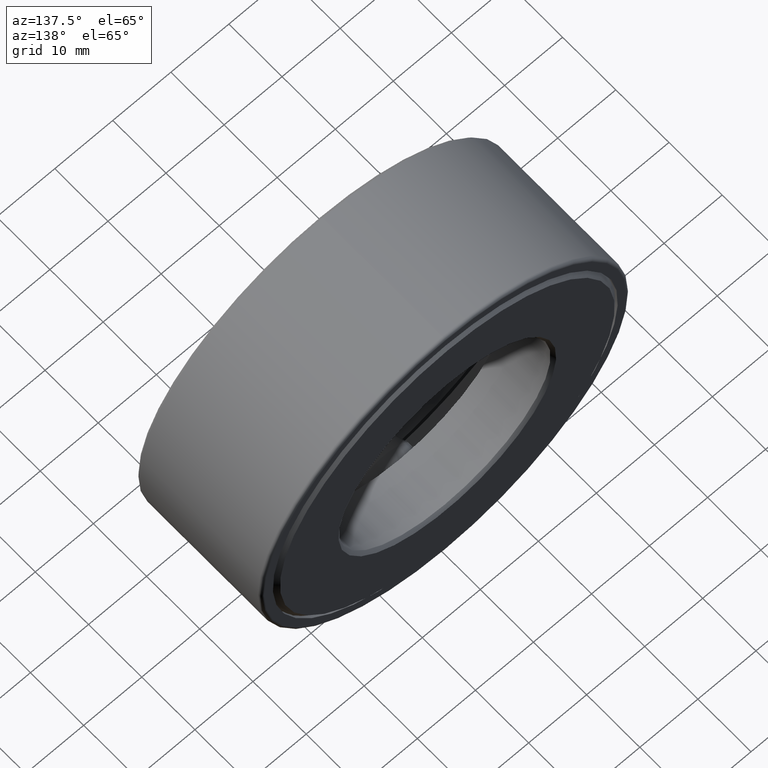
[diagram: clean part render]
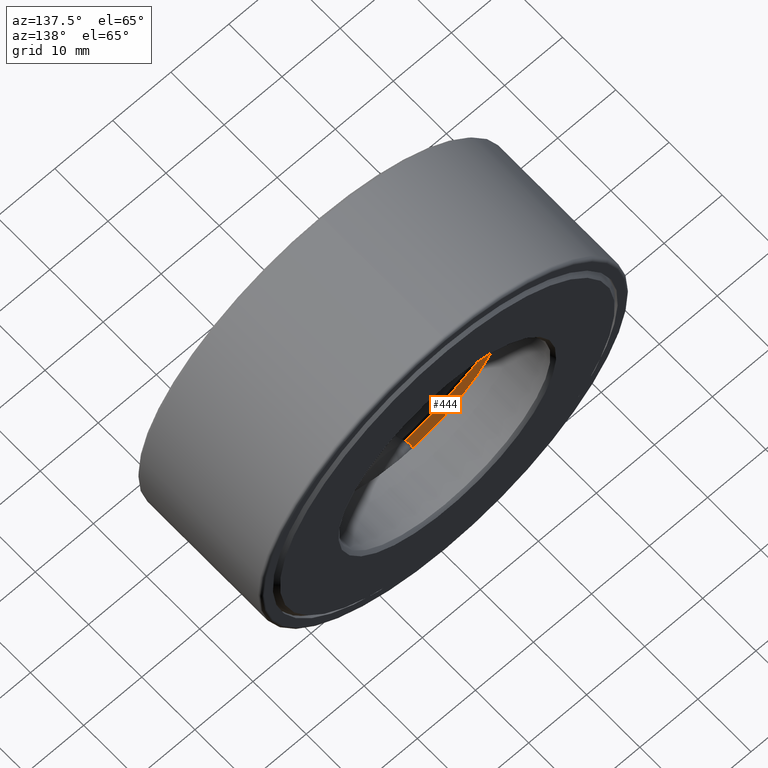
[diagram: same view with one face highlighted and labeled with its STEP entity id]
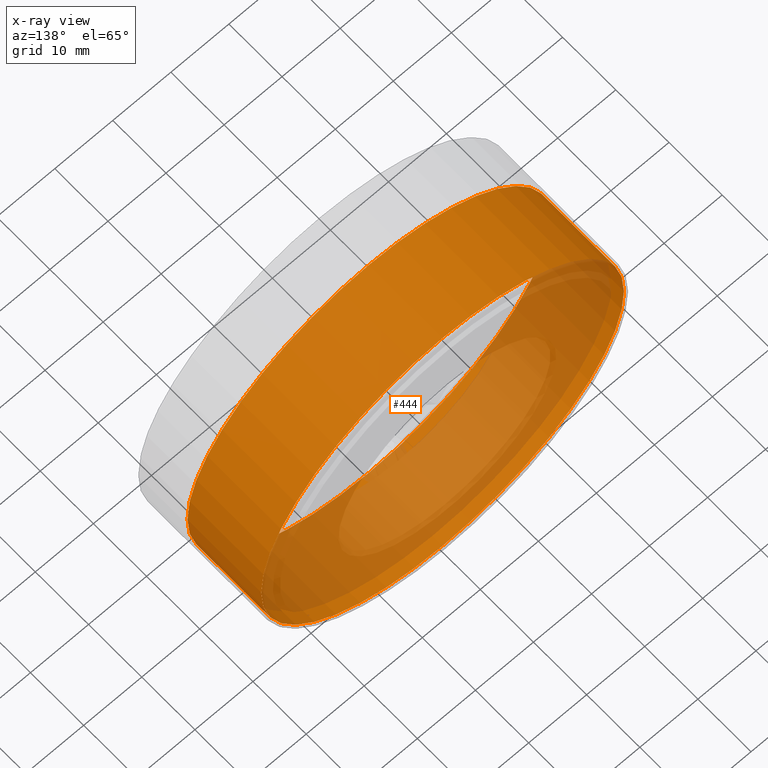
[diagram: x-ray of the same camera — body ghosted, the highlighted face saturated]
A machine part, auxiliary view. The second image highlights one B-rep face of the part: STEP entity #444.
The next image is the same camera in x-ray: the body ghosted, the highlighted face saturated — about 39% of this face is hidden behind the body in this view.
In plain terms, the highlighted cylindrical surface (bore or boss wall) has radius 31.242 mm, axis along (-0, 1, -0).
Its self-contained STEP definition (entity closure, byte-faithful):
#44 = VERTEX_POINT ( 'NONE', #352 ) ;
#67 = ORIENTED_EDGE ( 'NONE', *, *, #139, .F. ) ;
#92 = CARTESIAN_POINT ( 'NONE',  ( 0.0000000000000000000, 0.9024999999999998600, 0.0000000000000000000 ) ) ;
#93 = AXIS2_PLACEMENT_3D ( 'NONE', #476, #434, #384 ) ;
#117 = CYLINDRICAL_SURFACE ( 'NONE', #93, 1.230000000000000000 ) ;
#139 = EDGE_CURVE ( 'NONE', #267, #267, #510, .T. ) ;
#168 = DIRECTION ( 'NONE',  ( -0.0000000000000000000, 1.000000000000000000, -0.0000000000000000000 ) ) ;
#201 = CARTESIAN_POINT ( 'NONE',  ( 0.0000000000000000000, 0.3562499999999999000, 1.229999999999999800 ) ) ;
#218 = DIRECTION ( 'NONE',  ( 0.0000000000000000000, 0.0000000000000000000, 1.000000000000000000 ) ) ;
#221 = CIRCLE ( 'NONE', #584, 1.230000000000000000 ) ;
#267 = VERTEX_POINT ( 'NONE', #201 ) ;
#300 = EDGE_CURVE ( 'NONE', #44, #44, #221, .T. ) ;
#327 = DIRECTION ( 'NONE',  ( -0.0000000000000000000, 1.000000000000000000, -0.0000000000000000000 ) ) ;
#333 = EDGE_LOOP ( 'NONE', ( #422 ) ) ;
#351 = FACE_OUTER_BOUND ( 'NONE', #485, .T. ) ;
#352 = CARTESIAN_POINT ( 'NONE',  ( 0.0000000000000000000, 0.9024999999999998600, 1.230000000000000000 ) ) ;
#384 = DIRECTION ( 'NONE',  ( 0.0000000000000000000, 0.0000000000000000000, 1.000000000000000000 ) ) ;
#422 = ORIENTED_EDGE ( 'NONE', *, *, #300, .T. ) ;
#424 = DIRECTION ( 'NONE',  ( 0.0000000000000000000, 0.0000000000000000000, 1.000000000000000000 ) ) ;
#434 = DIRECTION ( 'NONE',  ( -0.0000000000000000000, 1.000000000000000000, -0.0000000000000000000 ) ) ;
#444 = ADVANCED_FACE ( 'NONE', ( #351, #582 ), #117, .F. ) ;
#469 = AXIS2_PLACEMENT_3D ( 'NONE', #600, #168, #218 ) ;
#476 = CARTESIAN_POINT ( 'NONE',  ( 0.0000000000000000000, 0.0000000000000000000, 0.0000000000000000000 ) ) ;
#485 = EDGE_LOOP ( 'NONE', ( #67 ) ) ;
#510 = CIRCLE ( 'NONE', #469, 1.229999999999999800 ) ;
#582 = FACE_OUTER_BOUND ( 'NONE', #333, .T. ) ;
#584 = AXIS2_PLACEMENT_3D ( 'NONE', #92, #327, #424 ) ;
#600 = CARTESIAN_POINT ( 'NONE',  ( 0.0000000000000000000, 0.3562499999999999000, 0.0000000000000000000 ) ) ;